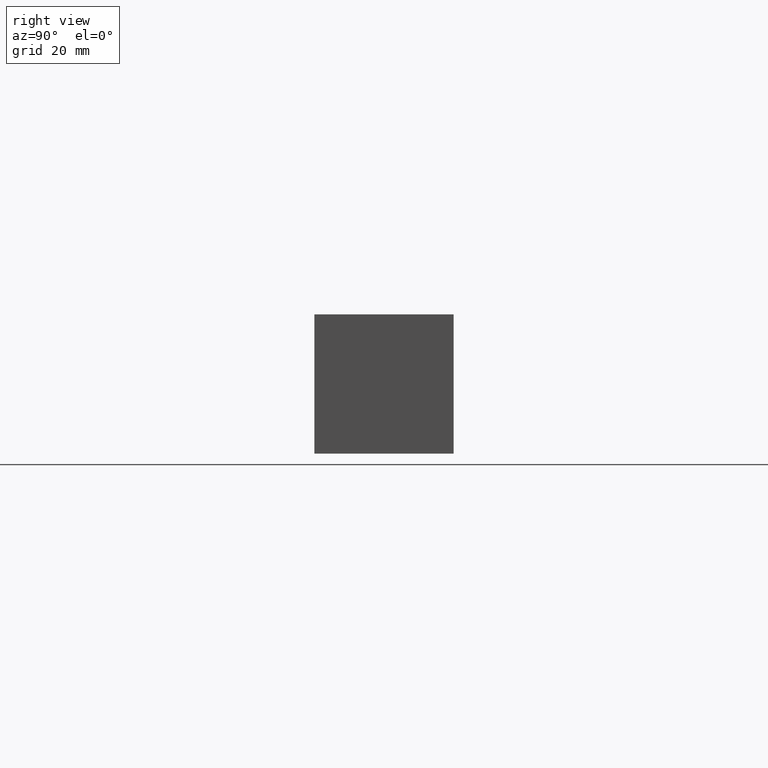
[diagram: clean part render]
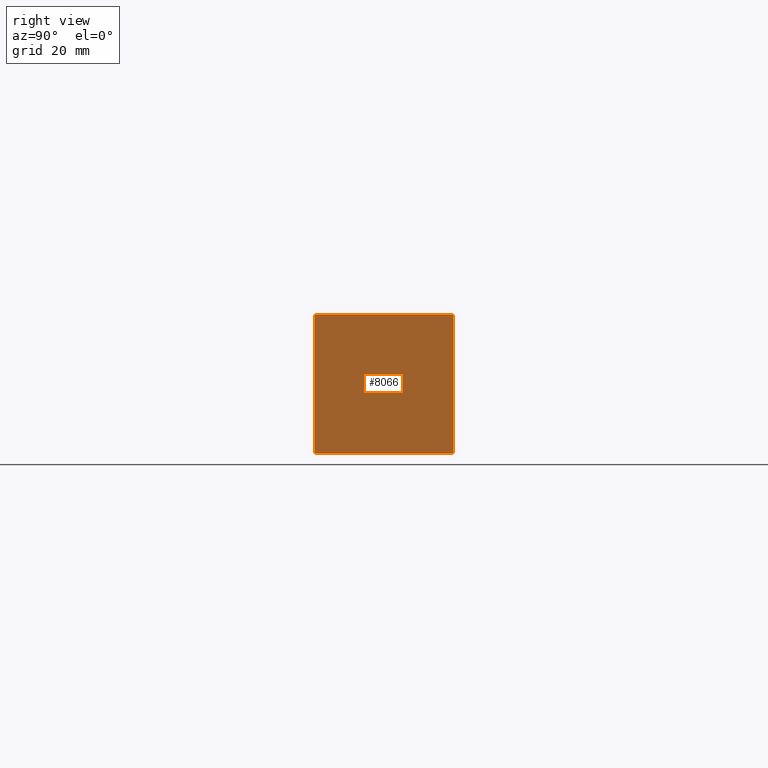
[diagram: same view with one face highlighted and labeled with its STEP entity id]
A machine part, right view. The second image highlights one B-rep face of the part: STEP entity #8066.
In plain terms, the highlighted planar face has unit normal (1, 0, 0).
Its self-contained STEP definition (entity closure, byte-faithful):
#560=PLANE('',#8568);
#976=FACE_OUTER_BOUND('',#1446,.T.);
#1446=EDGE_LOOP('',(#7217,#7218,#7219,#7220));
#1726=LINE('',#12468,#2462);
#2190=LINE('',#13914,#2926);
#2191=LINE('',#13917,#2927);
#2192=LINE('',#13918,#2928);
#2462=VECTOR('',#8978,10.);
#2926=VECTOR('',#10274,10.);
#2927=VECTOR('',#10277,10.);
#2928=VECTOR('',#10278,10.);
#3445=VERTEX_POINT('',#12465);
#3446=VERTEX_POINT('',#12467);
#3884=VERTEX_POINT('',#13912);
#3885=VERTEX_POINT('',#13916);
#4346=EDGE_CURVE('',#3445,#3446,#1726,.T.);
#5002=EDGE_CURVE('',#3884,#3446,#2190,.T.);
#5003=EDGE_CURVE('',#3885,#3884,#2191,.T.);
#5004=EDGE_CURVE('',#3885,#3445,#2192,.T.);
#7217=ORIENTED_EDGE('',*,*,#5003,.T.);
#7218=ORIENTED_EDGE('',*,*,#5002,.T.);
#7219=ORIENTED_EDGE('',*,*,#4346,.F.);
#7220=ORIENTED_EDGE('',*,*,#5004,.F.);
#8066=ADVANCED_FACE('',(#976),#560,.T.);
#8568=AXIS2_PLACEMENT_3D('',#13915,#10275,#10276);
#8978=DIRECTION('',(0.,1.,0.));
#10274=DIRECTION('',(0.,0.,1.));
#10275=DIRECTION('center_axis',(1.,0.,0.));
#10276=DIRECTION('ref_axis',(0.,1.,0.));
#10277=DIRECTION('',(0.,1.,0.));
#10278=DIRECTION('',(0.,0.,1.));
#12465=CARTESIAN_POINT('',(257.175,0.,50.8));
#12467=CARTESIAN_POINT('',(257.175,50.8,50.8));
#12468=CARTESIAN_POINT('',(257.175,0.,50.8));
#13912=CARTESIAN_POINT('',(257.175,50.8,0.));
#13914=CARTESIAN_POINT('',(257.175,50.8,0.));
#13915=CARTESIAN_POINT('Origin',(257.175,0.,0.));
#13916=CARTESIAN_POINT('',(257.175,0.,0.));
#13917=CARTESIAN_POINT('',(257.175,0.,0.));
#13918=CARTESIAN_POINT('',(257.175,0.,0.));